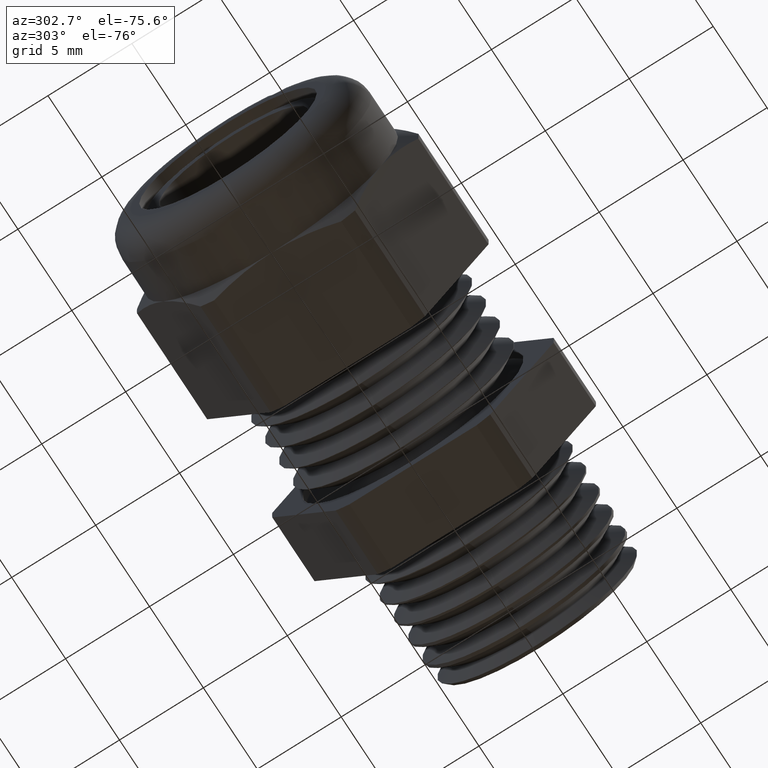
[diagram: clean part render]
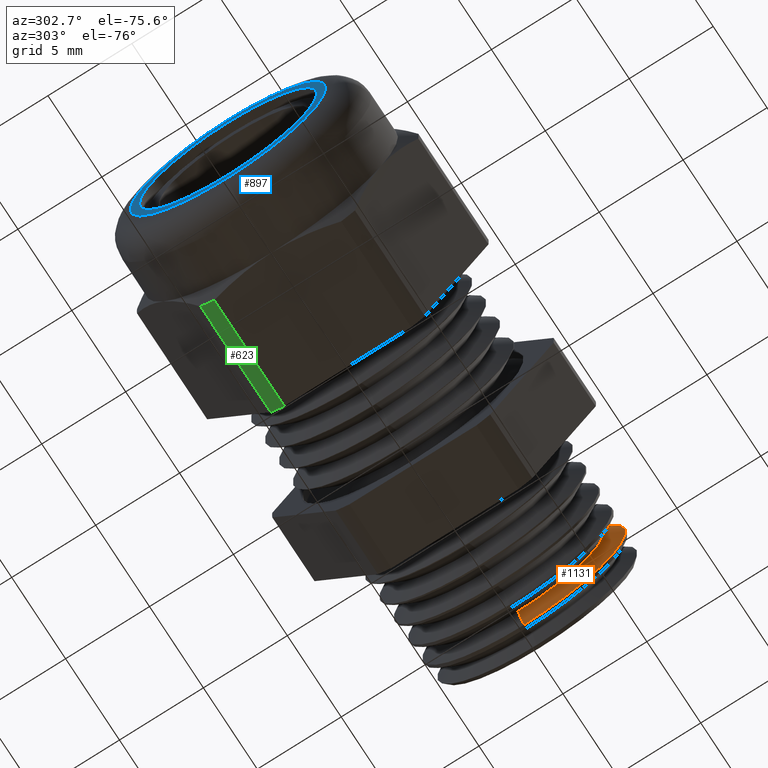
[diagram: same view with three faces highlighted in distinct colors, each labeled with its STEP entity id]
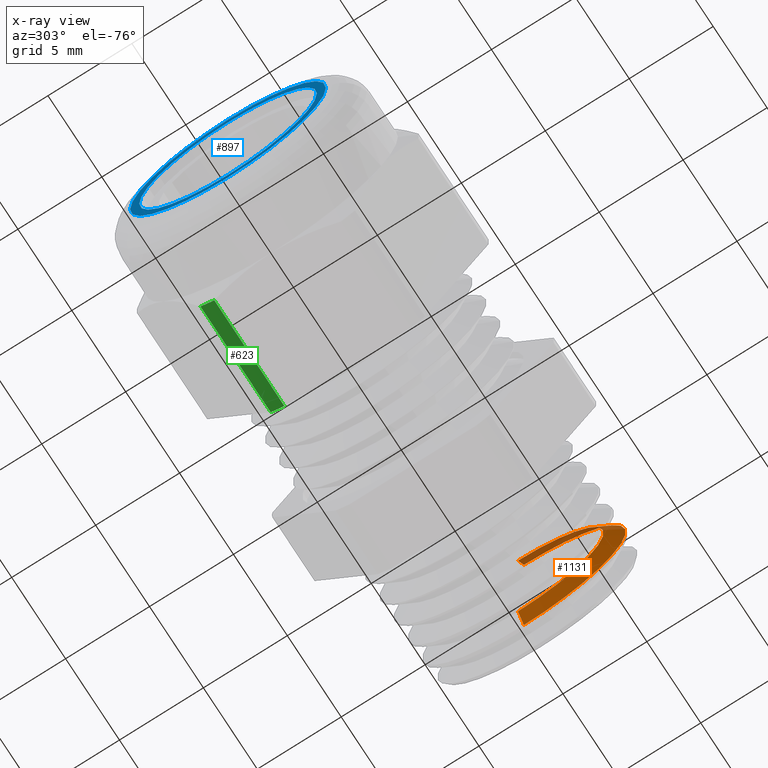
[diagram: x-ray of the same camera — body ghosted, the three highlighted faces saturated]
A machine part, auxiliary view with three faces highlighted in distinct colors.
The next image is the same camera in x-ray (body ghosted, the three faces saturated) — at least one of them is partly hidden behind the body in this view.
Their STEP definitions:

[orange] entity #1131 — the highlighted conical surface has half-angle 60 deg.
#434 = VERTEX_POINT ( 'NONE', #2078 ) ;
#436 = VERTEX_POINT ( 'NONE', #2072 ) ;
#557 = EDGE_CURVE ( 'NONE', #1215, #1216, #2279, .T. ) ;
#1110 = ORIENTED_EDGE ( 'NONE', *, *, #557, .T. ) ;
#1128 = EDGE_CURVE ( 'NONE', #434, #436, #3212, .T. ) ;
#1131 = ADVANCED_FACE ( 'NONE', ( #3208 ), #3206, .T. ) ;
#1132 = EDGE_LOOP ( 'NONE', ( #1134, #1135, #1136, #1110 ) ) ;
#1134 = ORIENTED_EDGE ( 'NONE', *, *, #1201, .F. ) ;
#1135 = ORIENTED_EDGE ( 'NONE', *, *, #1128, .F. ) ;
#1136 = ORIENTED_EDGE ( 'NONE', *, *, #1213, .T. ) ;
#1201 = EDGE_CURVE ( 'NONE', #436, #1216, #3309, .T. ) ;
#1213 = EDGE_CURVE ( 'NONE', #434, #1215, #3350, .T. ) ;
#1215 = VERTEX_POINT ( 'NONE', #3341 ) ;
#1216 = VERTEX_POINT ( 'NONE', #3340 ) ;
#2072 = CARTESIAN_POINT ( 'NONE',  ( 0.2293924526490036800, 0.0000000000000000000, 0.2010189818831387100 ) ) ;
#2078 = CARTESIAN_POINT ( 'NONE',  ( 0.2293924526490036800, 2.697866603721872600E-017, -0.2010189818831387100 ) ) ;
#2275 = DIRECTION ( 'NONE',  ( 0.0000000000000000000, 0.0000000000000000000, -1.000000000000000000 ) ) ;
#2276 = DIRECTION ( 'NONE',  ( -1.000000000000000000, 0.0000000000000000000, 0.0000000000000000000 ) ) ;
#2277 = CARTESIAN_POINT ( 'NONE',  ( 0.2509903209644076500, 0.0000000000000000000, 0.0000000000000000000 ) ) ;
#2278 = AXIS2_PLACEMENT_3D ( 'NONE', #2277, #2276, #2275 ) ;
#2279 = CIRCLE ( 'NONE', #2278, 0.2384275871406009700 ) ;
#3206 = CONICAL_SURFACE ( 'NONE', #3207, 0.2010189818831387100, 1.047197551196598100 ) ;
#3207 = AXIS2_PLACEMENT_3D ( 'NONE', #3266, #3265, #3264 ) ;
#3208 = FACE_OUTER_BOUND ( 'NONE', #1132, .T. ) ;
#3209 = DIRECTION ( 'NONE',  ( 0.0000000000000000000, 0.0000000000000000000, 1.000000000000000000 ) ) ;
#3210 = DIRECTION ( 'NONE',  ( -1.000000000000000000, 0.0000000000000000000, 0.0000000000000000000 ) ) ;
#3211 = AXIS2_PLACEMENT_3D ( 'NONE', #3217, #3210, #3209 ) ;
#3212 = CIRCLE ( 'NONE', #3211, 0.2010189818831387100 ) ;
#3217 = CARTESIAN_POINT ( 'NONE',  ( 0.2293924526490036800, 0.0000000000000000000, 0.0000000000000000000 ) ) ;
#3264 = DIRECTION ( 'NONE',  ( 0.0000000000000000000, 0.0000000000000000000, -1.000000000000000000 ) ) ;
#3265 = DIRECTION ( 'NONE',  ( 1.000000000000000000, 0.0000000000000000000, 0.0000000000000000000 ) ) ;
#3266 = CARTESIAN_POINT ( 'NONE',  ( 0.2293924526490036800, 0.0000000000000000000, 0.0000000000000000000 ) ) ;
#3306 = DIRECTION ( 'NONE',  ( 0.4999999999999997200, 1.060575238724907000E-016, 0.8660254037844388200 ) ) ;
#3307 = VECTOR ( 'NONE', #3306, 39.37007874015748100 ) ;
#3308 = CARTESIAN_POINT ( 'NONE',  ( 0.2293924526490036800, 2.461772527310456300E-017, 0.2010189818831387100 ) ) ;
#3309 = LINE ( 'NONE', #3308, #3307 ) ;
#3340 = CARTESIAN_POINT ( 'NONE',  ( 0.2509903209644076500, 0.0000000000000000000, 0.2384275871406009700 ) ) ;
#3341 = CARTESIAN_POINT ( 'NONE',  ( 0.2509903209644076500, 2.919895814201636000E-017, -0.2384275871406009700 ) ) ;
#3347 = DIRECTION ( 'NONE',  ( 0.4999999999999997200, 0.0000000000000000000, -0.8660254037844388200 ) ) ;
#3348 = VECTOR ( 'NONE', #3347, 39.37007874015748100 ) ;
#3349 = CARTESIAN_POINT ( 'NONE',  ( 0.2293924526490036800, 0.0000000000000000000, -0.2010189818831387100 ) ) ;
#3350 = LINE ( 'NONE', #3349, #3348 ) ;

[blue] entity #897 — the highlighted planar face has unit normal (1, 0, 0).
#14 = VERTEX_POINT ( 'NONE', #1242 ) ;
#15 = EDGE_CURVE ( 'NONE', #14, #23, #1239, .T. ) ;
#23 = VERTEX_POINT ( 'NONE', #1284 ) ;
#746 = EDGE_CURVE ( 'NONE', #845, #805, #2674, .T. ) ;
#805 = VERTEX_POINT ( 'NONE', #2750 ) ;
#845 = VERTEX_POINT ( 'NONE', #2865 ) ;
#896 = EDGE_CURVE ( 'NONE', #805, #845, #2919, .T. ) ;
#897 = ADVANCED_FACE ( 'NONE', ( #2914, #2913 ), #2912, .F. ) ;
#898 = EDGE_LOOP ( 'NONE', ( #899, #901 ) ) ;
#899 = ORIENTED_EDGE ( 'NONE', *, *, #900, .T. ) ;
#900 = EDGE_CURVE ( 'NONE', #23, #14, #2974, .T. ) ;
#901 = ORIENTED_EDGE ( 'NONE', *, *, #15, .T. ) ;
#902 = EDGE_LOOP ( 'NONE', ( #903, #904 ) ) ;
#903 = ORIENTED_EDGE ( 'NONE', *, *, #896, .F. ) ;
#904 = ORIENTED_EDGE ( 'NONE', *, *, #746, .F. ) ;
#1235 = DIRECTION ( 'NONE',  ( 0.0000000000000000000, 0.0000000000000000000, -1.000000000000000000 ) ) ;
#1236 = DIRECTION ( 'NONE',  ( -1.000000000000000000, 0.0000000000000000000, 0.0000000000000000000 ) ) ;
#1237 = CARTESIAN_POINT ( 'NONE',  ( -0.8300000000000000700, 0.0000000000000000000, 0.0000000000000000000 ) ) ;
#1238 = AXIS2_PLACEMENT_3D ( 'NONE', #1237, #1236, #1235 ) ;
#1239 = CIRCLE ( 'NONE', #1238, 0.2295999999999997800 ) ;
#1242 = CARTESIAN_POINT ( 'NONE',  ( -0.8300000000000000700, 3.212248554163504800E-017, 0.2295999999999997800 ) ) ;
#1284 = CARTESIAN_POINT ( 'NONE',  ( -0.8300000000000000700, 0.0000000000000000000, -0.2295999999999997800 ) ) ;
#2670 = DIRECTION ( 'NONE',  ( 0.0000000000000000000, 0.0000000000000000000, 1.000000000000000000 ) ) ;
#2671 = DIRECTION ( 'NONE',  ( -1.000000000000000000, 0.0000000000000000000, 0.0000000000000000000 ) ) ;
#2672 = CARTESIAN_POINT ( 'NONE',  ( -0.8300000000000000700, 0.0000000000000000000, 0.0000000000000000000 ) ) ;
#2673 = AXIS2_PLACEMENT_3D ( 'NONE', #2672, #2671, #2670 ) ;
#2674 = CIRCLE ( 'NONE', #2673, 0.2082499999999999900 ) ;
#2750 = CARTESIAN_POINT ( 'NONE',  ( -0.8300000000000000700, 0.0000000000000000000, 0.2082499999999999900 ) ) ;
#2865 = CARTESIAN_POINT ( 'NONE',  ( -0.8300000000000000700, 2.550326959224363000E-017, -0.2082499999999999900 ) ) ;
#2908 = DIRECTION ( 'NONE',  ( 0.0000000000000000000, 0.0000000000000000000, -1.000000000000000000 ) ) ;
#2909 = DIRECTION ( 'NONE',  ( 1.000000000000000000, 0.0000000000000000000, 0.0000000000000000000 ) ) ;
#2910 = CARTESIAN_POINT ( 'NONE',  ( -0.8300000000000000700, 0.2450000000000000000, 0.0000000000000000000 ) ) ;
#2911 = AXIS2_PLACEMENT_3D ( 'NONE', #2910, #2909, #2908 ) ;
#2912 = PLANE ( 'NONE',  #2911 ) ;
#2913 = FACE_BOUND ( 'NONE', #902, .T. ) ;
#2914 = FACE_OUTER_BOUND ( 'NONE', #898, .T. ) ;
#2915 = DIRECTION ( 'NONE',  ( 0.0000000000000000000, 0.0000000000000000000, 1.000000000000000000 ) ) ;
#2916 = DIRECTION ( 'NONE',  ( -1.000000000000000000, 0.0000000000000000000, 0.0000000000000000000 ) ) ;
#2917 = CARTESIAN_POINT ( 'NONE',  ( -0.8300000000000000700, 0.0000000000000000000, 0.0000000000000000000 ) ) ;
#2918 = AXIS2_PLACEMENT_3D ( 'NONE', #2917, #2916, #2915 ) ;
#2919 = CIRCLE ( 'NONE', #2918, 0.2082499999999999900 ) ;
#2970 = DIRECTION ( 'NONE',  ( 0.0000000000000000000, 0.0000000000000000000, -1.000000000000000000 ) ) ;
#2971 = DIRECTION ( 'NONE',  ( -1.000000000000000000, 0.0000000000000000000, 0.0000000000000000000 ) ) ;
#2972 = CARTESIAN_POINT ( 'NONE',  ( -0.8300000000000000700, 0.0000000000000000000, 0.0000000000000000000 ) ) ;
#2973 = AXIS2_PLACEMENT_3D ( 'NONE', #2972, #2971, #2970 ) ;
#2974 = CIRCLE ( 'NONE', #2973, 0.2295999999999997800 ) ;

[green] entity #623 — the highlighted cylindrical surface (partial cylindrical patch) has radius 8.3922 mm, axis along (-1, 0, 0).
#599 = ORIENTED_EDGE ( 'NONE', *, *, #600, .T. ) ;
#600 = EDGE_CURVE ( 'NONE', #627, #601, #2390, .T. ) ;
#601 = VERTEX_POINT ( 'NONE', #2386 ) ;
#602 = ORIENTED_EDGE ( 'NONE', *, *, #603, .T. ) ;
#603 = EDGE_CURVE ( 'NONE', #601, #604, #2385, .T. ) ;
#604 = VERTEX_POINT ( 'NONE', #2380 ) ;
#605 = ORIENTED_EDGE ( 'NONE', *, *, #606, .F. ) ;
#606 = EDGE_CURVE ( 'NONE', #628, #604, #2379, .T. ) ;
#623 = ADVANCED_FACE ( 'NONE', ( #2407 ), #2405, .T. ) ;
#624 = EDGE_LOOP ( 'NONE', ( #625, #599, #602, #605 ) ) ;
#625 = ORIENTED_EDGE ( 'NONE', *, *, #626, .F. ) ;
#626 = EDGE_CURVE ( 'NONE', #627, #628, #2400, .T. ) ;
#627 = VERTEX_POINT ( 'NONE', #2459 ) ;
#628 = VERTEX_POINT ( 'NONE', #2458 ) ;
#2376 = DIRECTION ( 'NONE',  ( 1.000000000000000000, 0.0000000000000000000, 0.0000000000000000000 ) ) ;
#2377 = VECTOR ( 'NONE', #2376, 39.37007874015748100 ) ;
#2378 = CARTESIAN_POINT ( 'NONE',  ( -1.612607445236302800, 0.1487923385124383400, -0.2949999999999999800 ) ) ;
#2379 = LINE ( 'NONE', #2378, #2377 ) ;
#2380 = CARTESIAN_POINT ( 'NONE',  ( -0.3920833333333332800, 0.1487923385124383700, -0.2950000000000000400 ) ) ;
#2381 = DIRECTION ( 'NONE',  ( 0.0000000000000000000, 0.0000000000000000000, 1.000000000000000000 ) ) ;
#2382 = DIRECTION ( 'NONE',  ( -1.000000000000000000, 0.0000000000000000000, 0.0000000000000000000 ) ) ;
#2383 = CARTESIAN_POINT ( 'NONE',  ( -0.3920833333333332800, 0.0000000000000000000, 0.0000000000000000000 ) ) ;
#2384 = AXIS2_PLACEMENT_3D ( 'NONE', #2383, #2382, #2381 ) ;
#2385 = CIRCLE ( 'NONE', #2384, 0.3304000000000001400 ) ;
#2386 = CARTESIAN_POINT ( 'NONE',  ( -0.3920833333333332800, 0.1810813248601902100, -0.2763579450402652800 ) ) ;
#2387 = DIRECTION ( 'NONE',  ( 1.000000000000000000, 0.0000000000000000000, 0.0000000000000000000 ) ) ;
#2388 = VECTOR ( 'NONE', #2387, 39.37007874015748100 ) ;
#2389 = CARTESIAN_POINT ( 'NONE',  ( -1.612607445236302800, 0.1810813248601902100, -0.2763579450402652800 ) ) ;
#2390 = LINE ( 'NONE', #2389, #2388 ) ;
#2399 = AXIS2_PLACEMENT_3D ( 'NONE', #2406, #2461, #2460 ) ;
#2400 = CIRCLE ( 'NONE', #2399, 0.3304000000000001400 ) ;
#2401 = DIRECTION ( 'NONE',  ( 0.0000000000000000000, 0.0000000000000000000, 1.000000000000000000 ) ) ;
#2402 = DIRECTION ( 'NONE',  ( -1.000000000000000000, 0.0000000000000000000, 0.0000000000000000000 ) ) ;
#2403 = CARTESIAN_POINT ( 'NONE',  ( -0.7238591030180623300, 0.0000000000000000000, 0.0000000000000000000 ) ) ;
#2404 = AXIS2_PLACEMENT_3D ( 'NONE', #2403, #2402, #2401 ) ;
#2405 = CYLINDRICAL_SURFACE ( 'NONE', #2404, 0.3304000000000001400 ) ;
#2406 = CARTESIAN_POINT ( 'NONE',  ( -0.6483118004706871500, 0.0000000000000000000, 0.0000000000000000000 ) ) ;
#2407 = FACE_OUTER_BOUND ( 'NONE', #624, .T. ) ;
#2458 = CARTESIAN_POINT ( 'NONE',  ( -0.6483118004706871500, 0.1487923385124383400, -0.2949999999999999800 ) ) ;
#2459 = CARTESIAN_POINT ( 'NONE',  ( -0.6483118004706871500, 0.1810813248601902400, -0.2763579450402653400 ) ) ;
#2460 = DIRECTION ( 'NONE',  ( 0.0000000000000000000, 7.993605777301127100E-015, -1.000000000000000000 ) ) ;
#2461 = DIRECTION ( 'NONE',  ( -1.000000000000000000, 0.0000000000000000000, 0.0000000000000000000 ) ) ;